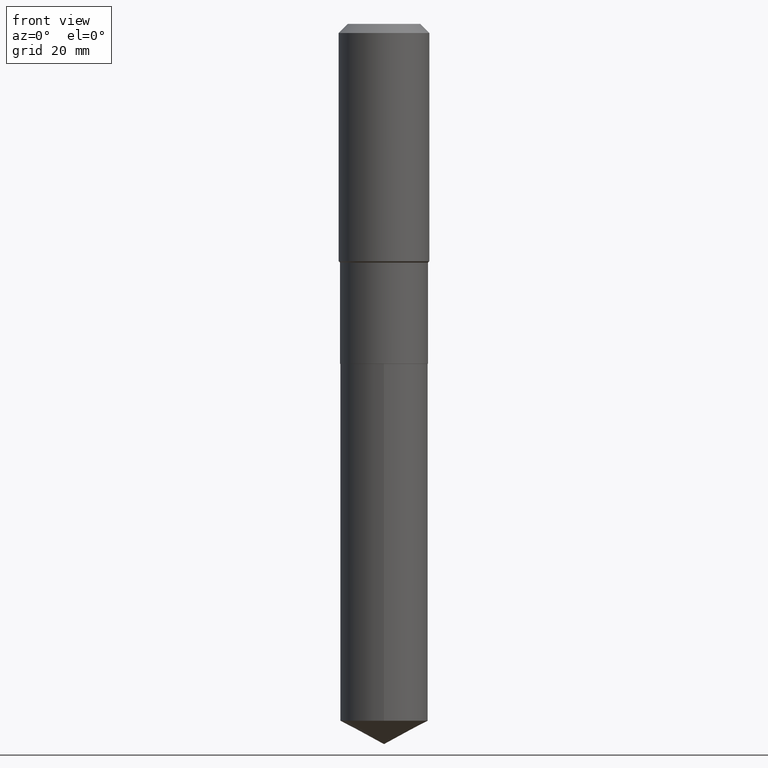
[diagram: clean part render]
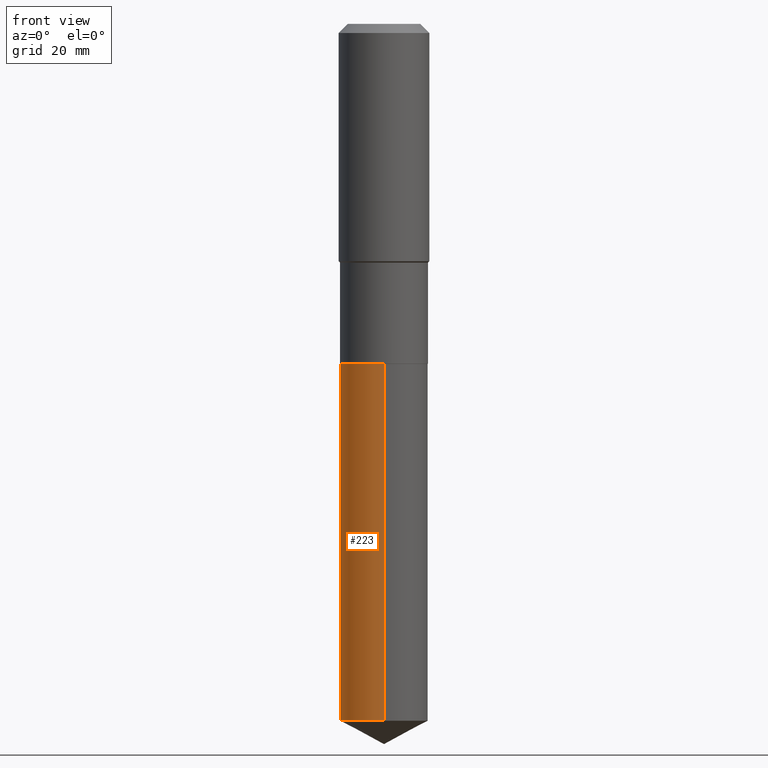
[diagram: same view with one face highlighted and labeled with its STEP entity id]
A machine part, front view. The second image highlights one B-rep face of the part: STEP entity #223.
In plain terms, the highlighted cylindrical surface (partial cylindrical patch) has radius 8.7312 mm, axis along (-0, 0, 1).
Its self-contained STEP definition (entity closure, byte-faithful):
#18 = ORIENTED_EDGE ( 'NONE', *, *, #204, .F. ) ;
#36 = VERTEX_POINT ( 'NONE', #250 ) ;
#40 = FACE_OUTER_BOUND ( 'NONE', #209, .T. ) ;
#44 = EDGE_CURVE ( 'NONE', #82, #36, #146, .T. ) ;
#45 = DIRECTION ( 'NONE',  ( -6.982962677686265922E-15, -1.000000000000000000, 3.178877665354778874E-15 ) ) ;
#47 = ORIENTED_EDGE ( 'NONE', *, *, #44, .T. ) ;
#54 = ORIENTED_EDGE ( 'NONE', *, *, #437, .T. ) ;
#68 = DIRECTION ( 'NONE',  ( -2.445339048643341394E-29, 3.491667159028337062E-15, 1.000000000000000000 ) ) ;
#70 = CARTESIAN_POINT ( 'NONE',  ( -2.400393420454521259E-15, -0.3437500000000189848, -5.447224882866366080 ) ) ;
#72 = CIRCLE ( 'NONE', #106, 0.3437500000000000000 ) ;
#81 = CARTESIAN_POINT ( 'NONE',  ( 2.442490654175477706E-15, 0.3437499999999907851, -2.656500000000001194 ) ) ;
#82 = VERTEX_POINT ( 'NONE', #70 ) ;
#98 = DIRECTION ( 'NONE',  ( -2.445339048643341394E-29, 3.491667159028337062E-15, 1.000000000000000000 ) ) ;
#106 = AXIS2_PLACEMENT_3D ( 'NONE', #207, #98, #442 ) ;
#117 = ORIENTED_EDGE ( 'NONE', *, *, #252, .F. ) ;
#140 = AXIS2_PLACEMENT_3D ( 'NONE', #303, #68, #226 ) ;
#146 = LINE ( 'NONE', #300, #232 ) ;
#180 = CIRCLE ( 'NONE', #140, 0.3437500000000000000 ) ;
#198 = CYLINDRICAL_SURFACE ( 'NONE', #273, 0.3437500000000000000 ) ;
#204 = EDGE_CURVE ( 'NONE', #360, #36, #180, .T. ) ;
#207 = CARTESIAN_POINT ( 'NONE',  ( 1.332065641372455860E-28, -1.901940260002451238E-14, -5.447224882866367857 ) ) ;
#209 = EDGE_LOOP ( 'NONE', ( #117, #54, #47, #18 ) ) ;
#223 = ADVANCED_FACE ( 'NONE', ( #40 ), #198, .T. ) ;
#226 = DIRECTION ( 'NONE',  ( -6.982962677686265922E-15, -1.000000000000000000, 3.178877665354778874E-15 ) ) ;
#232 = VECTOR ( 'NONE', #445, 39.37007874015748143 ) ;
#236 = DIRECTION ( 'NONE',  ( -2.445339048643341394E-29, 3.491667159028337062E-15, 1.000000000000000000 ) ) ;
#250 = CARTESIAN_POINT ( 'NONE',  ( -2.400393420454588706E-15, -0.3437500000000092704, -2.656499999999998973 ) ) ;
#252 = EDGE_CURVE ( 'NONE', #429, #360, #464, .T. ) ;
#273 = AXIS2_PLACEMENT_3D ( 'NONE', #276, #236, #45 ) ;
#276 = CARTESIAN_POINT ( 'NONE',  ( 6.496387883630815486E-29, -9.275120176636815281E-15, -2.656499999999999861 ) ) ;
#300 = CARTESIAN_POINT ( 'NONE',  ( -2.400393420454588706E-15, -0.3437500000000092704, -2.656499999999998973 ) ) ;
#303 = CARTESIAN_POINT ( 'NONE',  ( 6.496387883630815486E-29, -9.275120176636815281E-15, -2.656499999999999861 ) ) ;
#360 = VERTEX_POINT ( 'NONE', #81 ) ;
#389 = DIRECTION ( 'NONE',  ( -2.445339048643341394E-29, 3.491667159028337062E-15, 1.000000000000000000 ) ) ;
#429 = VERTEX_POINT ( 'NONE', #478 ) ;
#433 = CARTESIAN_POINT ( 'NONE',  ( 2.442490654175408681E-15, 0.3437499999999906741, -2.656500000000001194 ) ) ;
#437 = EDGE_CURVE ( 'NONE', #429, #82, #72, .T. ) ;
#442 = DIRECTION ( 'NONE',  ( -6.982962677686265922E-15, -1.000000000000000000, 3.178877665354778874E-15 ) ) ;
#445 = DIRECTION ( 'NONE',  ( -2.445339048643341394E-29, 3.491667159028337062E-15, 1.000000000000000000 ) ) ;
#464 = LINE ( 'NONE', #433, #488 ) ;
#478 = CARTESIAN_POINT ( 'NONE',  ( 2.442490654175476918E-15, 0.3437499999999810707, -5.447224882866368745 ) ) ;
#488 = VECTOR ( 'NONE', #389, 39.37007874015748143 ) ;